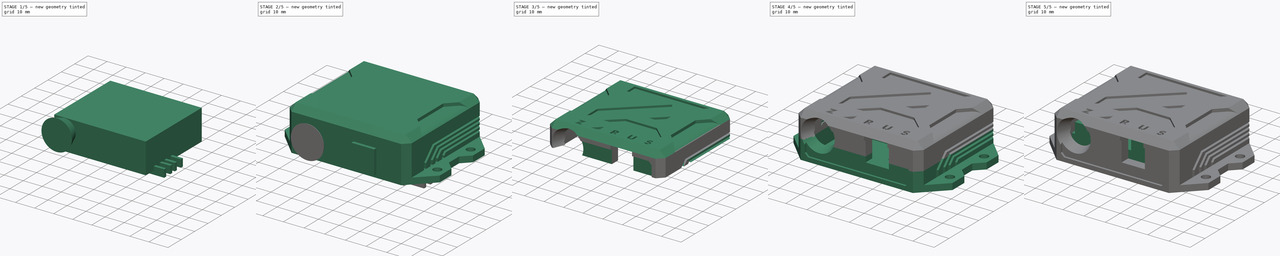
[diagram: build sequence overview — one tinted view per stage of 5, left to right]
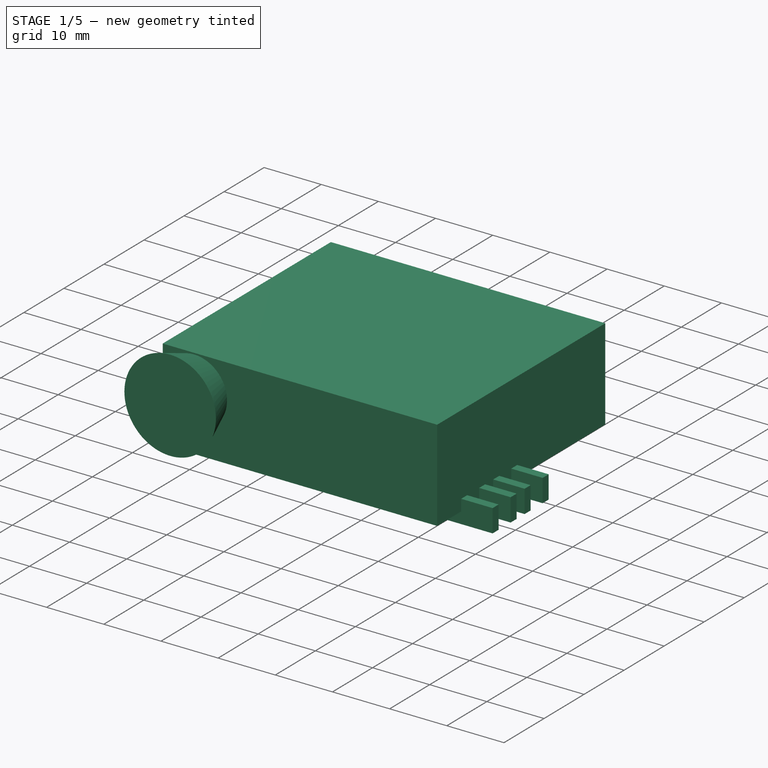
[diagram: stage 1 of 5 — iso view after this stage's code; geometry added in this stage tinted green]
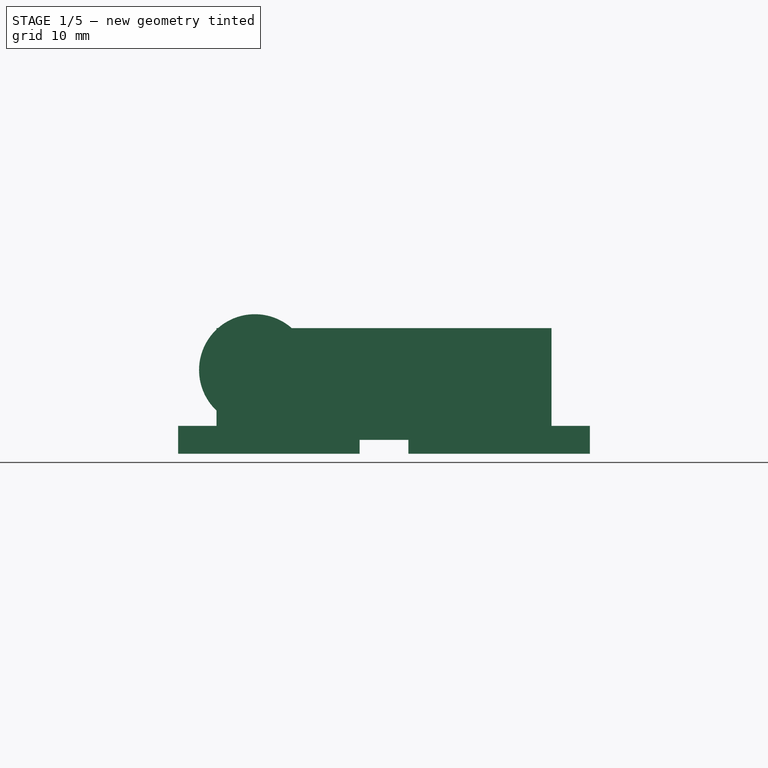
[diagram: stage 1 of 5 — front view after this stage's code; geometry added in this stage tinted green]
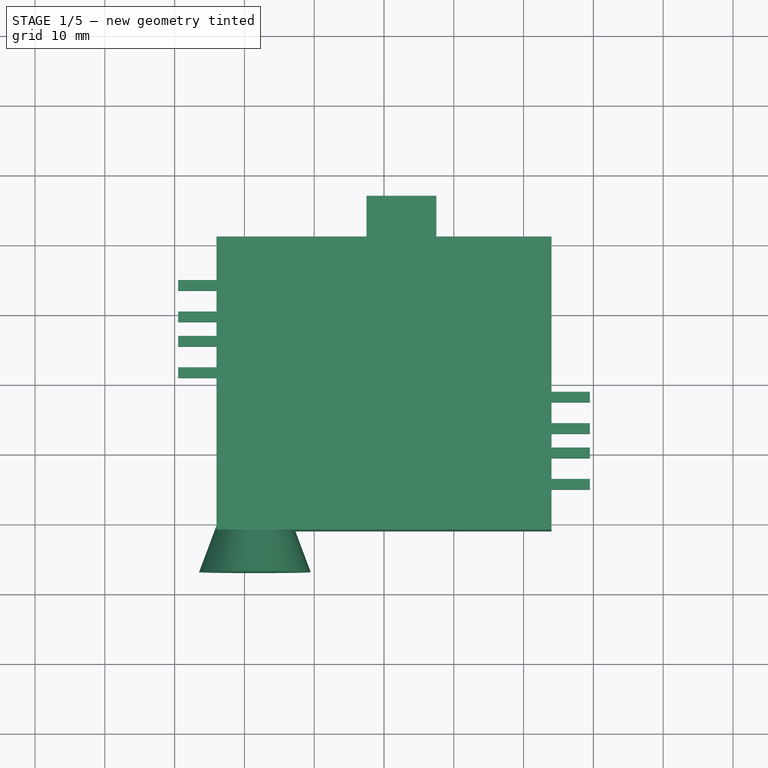
[diagram: stage 1 of 5 — top view after this stage's code; geometry added in this stage tinted green]
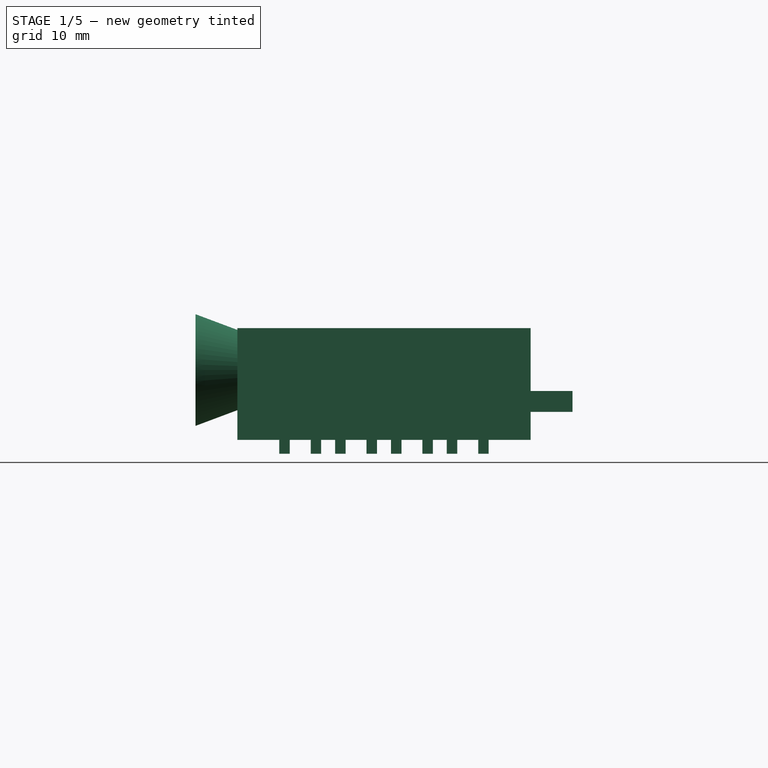
[diagram: stage 1 of 5 — right view after this stage's code; geometry added in this stage tinted green]
FCSTD DOCUMENT  (FreeCAD 0.18.4R)
Label: case
License: All rights reserved
LicenseURL: http://en.wikipedia.org/wiki/All_rights_reserved
objects: Part::Box×32, Part::MultiFuse×13, Sketcher::SketchObject×11, PartDesign::Body×8, Part::Feature×8, PartDesign::Pad×7, Part::Cut×6, PartDesign::FeatureBase×6, PartDesign::Pocket×4, PartDesign::Chamfer×3, Part::Chamfer×2, Part::Fillet×1, Spreadsheet::Sheet×1, Part::Cylinder×1, Part::Cone×1, PartDesign::Fillet×1, Part::MultiCommon×1
note: 116 computed .brp shape members not serialized (recipe doc carries the construction recipe); baked Part::Feature solids carry a one-line shape summary decoded from their .brp

FEATURE [Part::Box] Box011  label="Cube011"
  AttacherType = Attacher::AttachEngine3D
  Height = 4
  Length = 26
  Placement = pos=(3.5,-7,-5) rot=(0,0,1;0rad)
  Width = 1.5
FEATURE [Part::Box] Box013  label="Cube013"
  AttacherType = Attacher::AttachEngine3D
  Height = 4
  Length = 26
  Placement = pos=(3.5,-15,-5) rot=(0,0,1;0rad)
  Width = 1.5
FEATURE [Part::Box] Box012  label="Cube012"
  AttacherType = Attacher::AttachEngine3D
  Height = 4
  Length = 26
  Placement = pos=(3.5,-2.5,-5) rot=(0,0,1;0rad)
  Width = 1.5
FEATURE [Part::Box] Box010  label="Cube010"
  AttacherType = Attacher::AttachEngine3D
  Height = 4
  Length = 26
  Placement = pos=(3.5,-10.5,-5) rot=(0,0,1;0rad)
  Width = 1.5
FEATURE [Part::Box] Box009  label="Cube009"
  AttacherType = Attacher::AttachEngine3D
  Height = 4
  Length = 26
  Placement = pos=(3.5,-15,-5) rot=(0,0,1;0rad)
  Width = 1.5
FEATURE [Part::MultiFuse] Fusion002
  Shapes = -> [Box009,Box010,Box012,Box011]
FEATURE [Part::Box] Box016  label="Cube016"
  AttacherType = Attacher::AttachEngine3D
  Height = 4
  Length = 26
  Placement = pos=(3.5,-7,-5) rot=(0,0,1;0rad)
  Width = 1.5
FEATURE [Part::Box] Box015  label="Cube015"
  AttacherType = Attacher::AttachEngine3D
  Height = 4
  Length = 26
  Placement = pos=(3.5,-2.5,-5) rot=(0,0,1;0rad)
  Width = 1.5
FEATURE [Part::Box] Box014  label="Cube014"
  AttacherType = Attacher::AttachEngine3D
  Height = 4
  Length = 26
  Placement = pos=(3.5,-10.5,-5) rot=(0,0,1;0rad)
  Width = 1.5
FEATURE [Part::MultiFuse] Fusion003
  Placement = pos=(-33,16,0) rot=(0,0,1;0rad)
  Shapes = -> [Box013,Box014,Box015,Box016]
FEATURE [Part::MultiFuse] Fusion004  label="Ventilaciones"
  Shapes = -> [Fusion002,Fusion003]
FEATURE [Part::Cylinder] Cylinder  label="IrHole"
  Angle = 360
  AttacherType = Attacher::AttachEngine3D
  Height = 8
  Placement = pos=(-18.5,-19,7) rot=(1,0,0;1.5708rad)
  Radius = 5
FEATURE [Part::Box] Box019  label="CableHole"
  AttacherType = Attacher::AttachEngine3D
  Height = 3
  Length = 10
  Placement = pos=(-2.5,19,1) rot=(0,0,1;0rad)
  Width = 8
FEATURE [Part::Box] Box020  label="PCB_space"
  AttacherType = Attacher::AttachEngine3D
  Height = 16
  Length = 48
  Placement = pos=(-24,-21,-3) rot=(0,0,1;0rad)
  Width = 42
FEATURE [Part::Cone] Cone  label="IrHoleExpand"
  Angle = 360
  AttacherType = Attacher::AttachEngine3D
  Height = 8
  Placement = pos=(-18.5,-19,7) rot=(1,0,0;1.5708rad)
  Radius1 = 5
  Radius2 = 8
FEATURE [PartDesign::FeatureBase] Clone010
  BaseFeature = -> Fusion004
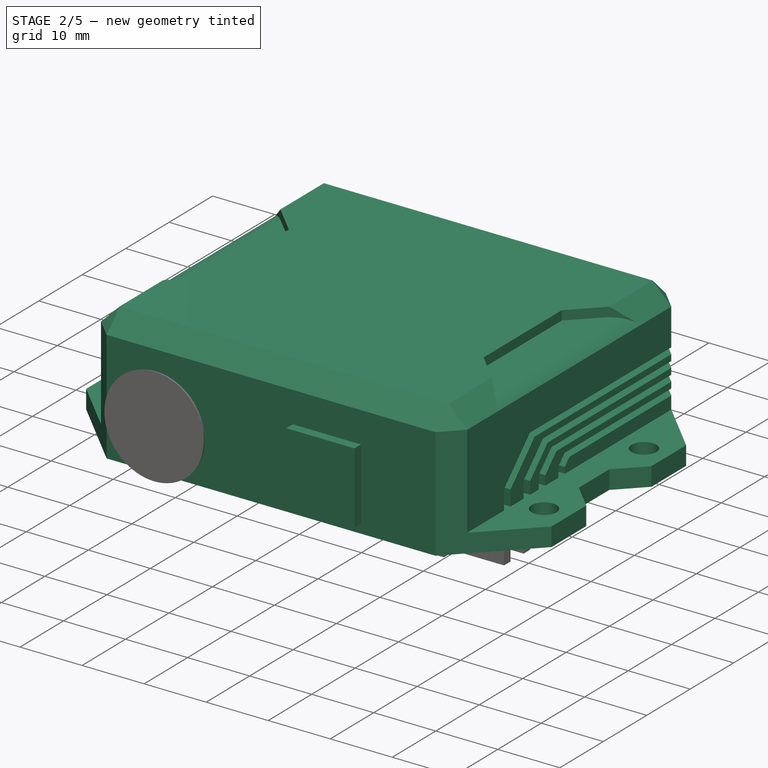
[diagram: stage 2 of 5 — iso view after this stage's code; geometry added in this stage tinted green]
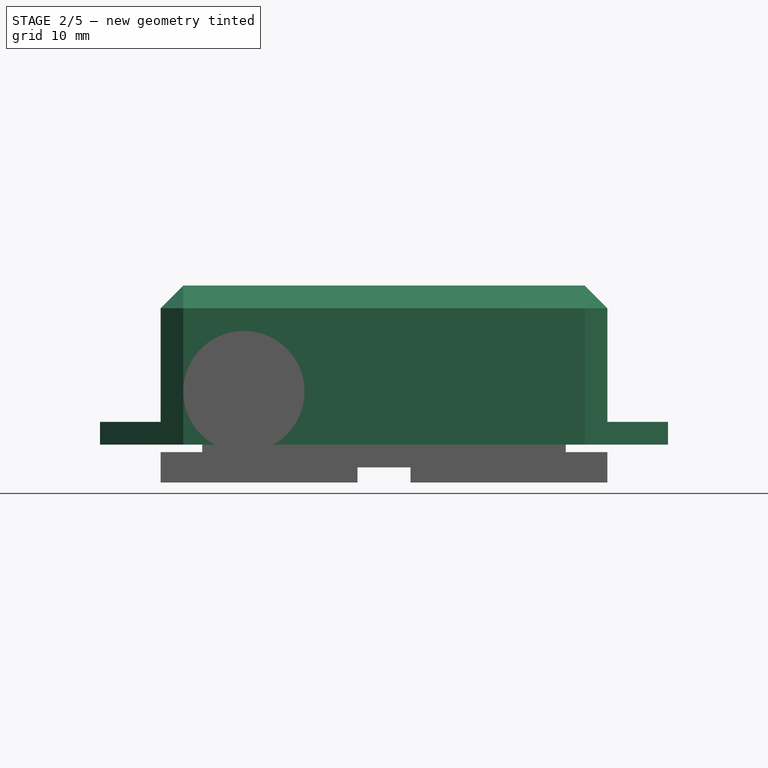
[diagram: stage 2 of 5 — front view after this stage's code; geometry added in this stage tinted green]
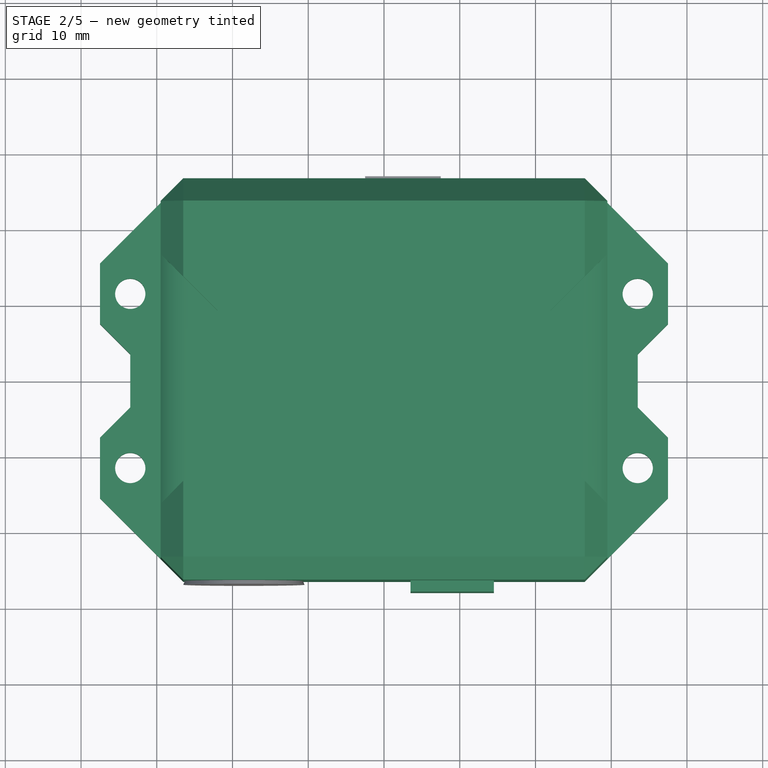
[diagram: stage 2 of 5 — top view after this stage's code; geometry added in this stage tinted green]
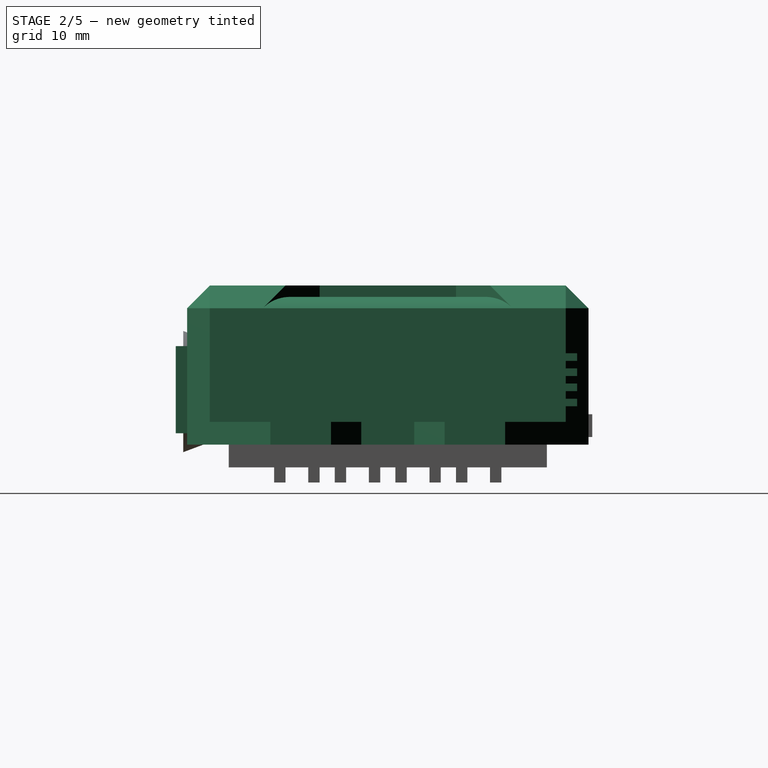
[diagram: stage 2 of 5 — right view after this stage's code; geometry added in this stage tinted green]
FEATURE [Part::Box] Box  label="Cube"
  AttacherType = Attacher::AttachEngine3D
  Height = 7
  Length = 8
  Placement = pos=(5,-5.5,7) rot=(0,0,1;0rad)
  Width = 10
FEATURE [Part::Chamfer] Chamfer
  Base = -> Box
  Edges = 1 edges r=6: [Edge11]
FEATURE [Part::Fillet] Fillet  label="stopper"
  Base = -> Chamfer
  Edges = 1 edges r=4: [Edge9]
FEATURE [Spreadsheet::Sheet] Spreadsheet
  cells = A2=Ancho de PBC; B2(ancho_pbc)=47; A3=Profundo PBC; B3(profundo_pbc)=41; A4=Grosor PBC; A5=Grosor Pared; B5(grosor_pared)=1.5; A6=Grosor Pared Externa; B6(grosor_pared_externa)=4; A7=margen; B7(margen)=0.5; A9=Altura Corte; B9(altura_corte)=9
FEATURE [Sketcher::SketchObject] Sketch014
  MapMode = 5
  Support = -> [XY_Plane009]
  expr: Constraints[9] = Spreadsheet.profundo_pbc + Spreadsheet.grosor_pared * 2 + Spreadsheet.margen * 2 + Spreadsheet.grosor_pared_externa * 2
  expr: Constraints[8] = Spreadsheet.ancho_pbc + Spreadsheet.grosor_pared * 2 + Spreadsheet.margen * 2 + Spreadsheet.grosor_pared_externa * 2
  sketch-geometry (4):
    g0: LineSegment StartX=-29.5 StartY=26.5 StartZ=0 EndX=29.5 EndY=26.5 EndZ=0
    g1: LineSegment StartX=29.5 StartY=26.5 StartZ=0 EndX=29.5 EndY=-26.5 EndZ=0
    g2: LineSegment StartX=29.5 StartY=-26.5 StartZ=0 EndX=-29.5 EndY=-26.5 EndZ=0
    g3: LineSegment StartX=-29.5 StartY=-26.5 StartZ=0 EndX=-29.5 EndY=26.5 EndZ=0
  constraints (10):
    c: Coincident(g0,g1)
    c: Coincident(g1,g2)
    c: Coincident(g2,g3)
    c: Coincident(g3,g0)
    c: Horizontal(g0)
    c: Vertical(g1)
    c: Symmetric(g1,g2,g-2)
    c: Symmetric(g2,g0,g-1)
    c: DistanceX(g0,g0) = 59
    c: DistanceY(g1,g1) = 53
FEATURE [PartDesign::Pad] Pad009
  Length = 21
  Length2 = 100
  Profile = -> Sketch014
  Type = 0
FEATURE [Sketcher::SketchObject] Sketch015
  ExternalGeometry = -> [Pad009]
  MapMode = 5
  Placement = pos=(0,0,0) rot=(1,0,0;3.14159rad)
  Support = -> [Pad009]
  expr: Constraints[36] = Spreadsheet.ancho_pbc + 8 + (Spreadsheet.margen + Spreadsheet.grosor_pared + Spreadsheet.grosor_pared_externa) * 2
  sketch-geometry (20):
    g0: Circle CenterX=-33.5 CenterY=11.5 CenterZ=0 NormalX=0 NormalY=0 NormalZ=1 AngleXU=0 Radius=2
    g1: Circle CenterX=-33.5 CenterY=-11.5 CenterZ=0 NormalX=0 NormalY=0 NormalZ=1 AngleXU=0 Radius=2
    g2: Circle CenterX=33.5 CenterY=-11.5 CenterZ=0 NormalX=0 NormalY=0 NormalZ=1 AngleXU=0 Radius=2
    g3: Circle CenterX=33.5 CenterY=11.5 CenterZ=0 NormalX=0 NormalY=0 NormalZ=1 AngleXU=0 Radius=2
    g4: LineSegment StartX=-37.5 StartY=-15.5 StartZ=0 EndX=-37.5 EndY=-7.5 EndZ=0
    g5: LineSegment StartX=-37.5 StartY=-7.5 StartZ=0 EndX=-33.5 EndY=-3.5 EndZ=0
    g6: LineSegment StartX=-33.5 StartY=-3.5 StartZ=0 EndX=-33.5 EndY=3.5 EndZ=0
    g7: LineSegment StartX=-33.5 StartY=3.5 StartZ=0 EndX=-37.5 EndY=7.5 EndZ=0
    g8: LineSegment StartX=-37.5 StartY=7.5 StartZ=0 EndX=-37.5 EndY=15.5 EndZ=0
    g9: LineSegment StartX=29.5 StartY=-23.5 StartZ=0 EndX=37.5 EndY=-15.5 EndZ=0
    g10: LineSegment StartX=37.5 StartY=-15.5 StartZ=0 EndX=37.5 EndY=-7.5 EndZ=0
    g11: LineSegment StartX=37.5 StartY=-7.5 StartZ=0 EndX=33.5 EndY=-3.5 EndZ=0
    g12: LineSegment StartX=33.5 StartY=-3.5 StartZ=0 EndX=33.5 EndY=3.5 EndZ=0
    g13: LineSegment StartX=33.5 StartY=3.5 StartZ=0 EndX=37.5 EndY=7.5 EndZ=0
    g14: LineSegment StartX=37.5 StartY=7.5 StartZ=0 EndX=37.5 EndY=15.5 EndZ=0
    g15: LineSegment StartX=37.5 StartY=15.5 StartZ=0 EndX=29.5 EndY=23.5 EndZ=0
    g16: LineSegment StartX=-29.5 StartY=-23.5 StartZ=0 EndX=-37.5 EndY=-15.5 EndZ=0
    g17: LineSegment StartX=-29.5 StartY=23.5 StartZ=0 EndX=-37.5 EndY=15.5 EndZ=0
    g18: LineSegment StartX=-29.5 StartY=23.5 StartZ=0 EndX=29.5 EndY=23.5 EndZ=0
    g19: LineSegment StartX=-29.5 StartY=-23.5 StartZ=0 EndX=29.5 EndY=-23.5 EndZ=0
  constraints (58):
    c: Radius(g0) = 2
    c: Equal(g0,g1) = 2
    c: Horizontal(g1,g2)
    c: Vertical(g1,g0)
    c: Coincident(g4,g5)
    c: Coincident(g5,g6)
    c: Coincident(g6,g7)
    c: Coincident(g7,g8)
    c: Coincident(g9,g10)
    c: Coincident(g10,g11)
    c: Coincident(g11,g12)
    c: Coincident(g12,g13)
    c: Coincident(g13,g14)
    c: Coincident(g14,g15)
    c: Vertical(g14)
    c: Vertical(g12)
    c: Vertical(g10)
    c: Vertical(g4)
    c: Vertical(g6)
    c: Vertical(g8)
    c: Coincident(g17,g8)
    c: Coincident(g16,g4)
    c: Equal(g4,g8)
    c: Equal(g8,g14)
    c: Equal(g14,g10)
    c: Equal(g12,g6)
    c: Equal(g7,g5)
    c: Equal(g5,g11)
    c: Equal(g11,g13)
    c: DistanceY(g17,g-3) = 3
    c: PointOnObject(g17,g-3)
    c: DistanceY(g15,g-4) = 3
    c: PointOnObject(g15,g-4)
    c: PointOnObject(g9,g-4)
    c: DistanceY(g-3,g16) = 3
    c: PointOnObject(g16,g-3)
    c: DistanceX(g0,g3) = 67
    c: Symmetric(g0,g3,g-2)
    c: Symmetric(g3,g2,g-1)
    c: Coincident(g9,g19)
    c: Coincident(g19,g16)
    c: Coincident(g18,g15)
    c: Coincident(g18,g17)
    c: Horizontal(g19)
    c: Angle(g14,g13) = 2.35619
    c: Parallel(g13,g5)
    c: Parallel(g7,g11)
    c: Perpendicular(g13,g11)
    c: DistanceY(g8,g8) = 8
    c: DistanceX(g8,g17) = 8
    c: Vertical(g0,g6)
    c: Equal(g15,g17)
    c: Equal(g17,g16)
    c: Equal(g16,g9)
    c: Parallel(g15,g11)
    c: DistanceY(g13,g3) = 4
    c: Equal(g3,g2)
    c: Equal(g2,g1)
FEATURE [PartDesign::Pad] Pad010
  BaseFeature = -> Pad009
  Length = 3
  Length2 = 100
  Profile = -> Sketch015
  Reversed = true
  Type = 0
FEATURE [PartDesign::Body] Body012
  BaseFeature = -> Fusion012
  Group = -> [Clone008]
  Origin = -> Origin012
  Placement = pos=(0,0,0.5) rot=(0,0,1;0rad)
  Tip = -> Clone008
FEATURE [Part::Box] Box018  label="PowerHole"
  AttacherType = Attacher::AttachEngine3D
  Height = 11.5
  Length = 11
  Placement = pos=(3.5,-28,1.5) rot=(0,0,1;0rad)
  Width = 8
FEATURE [Part::MultiFuse] Fusion017
  Shapes = -> [Box020,Box018,Cylinder,Box019,Cone]
FEATURE [Part::Cut] Cut003  label="InternalSpace"
  Base = -> Fusion017
  Tool = -> Fillet
FEATURE [PartDesign::Chamfer] Chamfer005
  Base = -> Pad010 [Edge17,Edge11,Edge10,Edge20,Edge18,Edge2,Edge4,Edge1]
  BaseFeature = -> Pad010
  Size = 2.999
FEATURE [Sketcher::SketchObject] Sketch016
  ExternalGeometry = -> [Pad010]
  MapMode = 5
  Placement = pos=(0,0,21) rot=(0,0,1;0rad)
  Support = -> [Pad010]
  sketch-geometry (12):
    g0: LineSegment StartX=29.5 StartY=16.5 StartZ=0 EndX=22 EndY=9 EndZ=0
    g1: LineSegment StartX=22 StartY=9 StartZ=0 EndX=22 EndY=-9 EndZ=0
    g2: LineSegment StartX=22 StartY=-9 StartZ=0 EndX=29.5 EndY=-16.5 EndZ=0
    g3: LineSegment StartX=-29.5 StartY=16.5 StartZ=0 EndX=-22 EndY=9 EndZ=0
    g4: LineSegment StartX=-22 StartY=9 StartZ=0 EndX=-22 EndY=-9 EndZ=0
    g5: LineSegment StartX=-22 StartY=-9 StartZ=0 EndX=-29.5 EndY=-16.5 EndZ=0
    g6: LineSegment StartX=-29.5 StartY=16.5 StartZ=0 EndX=-41 EndY=28 EndZ=0
    g7: LineSegment StartX=41 StartY=28 StartZ=0 EndX=29.5 EndY=16.5 EndZ=0
    g8: LineSegment StartX=-29.5 StartY=-16.5 StartZ=0 EndX=-41 EndY=-28 EndZ=0
    g9: LineSegment StartX=41 StartY=-28 StartZ=0 EndX=29.5 EndY=-16.5 EndZ=0
    g10: LineSegment StartX=-41 StartY=28 StartZ=0 EndX=-41 EndY=-28 EndZ=0
    g11: LineSegment StartX=41 StartY=28 StartZ=0 EndX=41 EndY=-28 EndZ=0
  constraints (36):
    c: Coincident(g0,g1)
    c: Coincident(g1,g2)
    c: Coincident(g3,g4)
    c: Coincident(g4,g5)
    c: Equal(g5,g2)
    c: Equal(g2,g0)
    c: Equal(g0,g3)
    c: Equal(g1,g4)
    c: Vertical(g4)
    c: Vertical(g1)
    c: Angle(g1,g0) = 2.35619
    c: PointOnObject(g0,g-3)
    c: PointOnObject(g3,g-4)
    c: Parallel(g3,g2)
    c: Parallel(g5,g0)
    c: Perpendicular(g2,g0)
    c: DistanceY(g0,g-3) = 10
    c: DistanceY(g-3,g2) = 10
    c: DistanceY(g1,g1) = 18
    c: Horizontal(g3,g0)
    c: Equal(g7,g6)
    c: Equal(g6,g8)
    c: Equal(g8,g9)
    c: Vertical(g7,g9)
    c: Parallel(g8,g7)
    c: Coincident(g9,g2)
    c: Coincident(g8,g5)
    c: Coincident(g3,g6)
    c: Parallel(g8,g5)
    c: DistanceX(g8,g9) = 82
    c: Equal(g11,g10)
    c: Coincident(g11,g7)
    c: Coincident(g11,g9)
    c: Coincident(g10,g8)
    c: Coincident(g10,g6)
    c: Coincident(g7,g0)
FEATURE [PartDesign::Pocket] Pocket
  BaseFeature = -> Chamfer005
  Length = 1.5
  Length2 = 100
  Profile = -> Sketch016
  Type = 0
FEATURE [PartDesign::Fillet] Fillet001
  Base = -> Pocket [Edge54,Edge86]
  BaseFeature = -> Pocket
  Radius = 5
FEATURE [Sketcher::SketchObject] Sketch017
  ExternalGeometry = -> [Fillet001]
  MapMode = 5
  Placement = pos=(29.5,0,0) rot=(0.57735,0.57735,0.57735;2.0944rad)
  Support = -> [Fillet001]
  sketch-geometry (39):
    g0: LineSegment StartX=-2.5 StartY=3 StartZ=0 EndX=-1 EndY=3 EndZ=0
    g1: LineSegment StartX=-5.5 StartY=3 StartZ=0 EndX=-7 EndY=3 EndZ=0
    g2: LineSegment StartX=-10.5 StartY=3 StartZ=0 EndX=-9 EndY=3 EndZ=0
    g3: LineSegment StartX=-13.5 StartY=3 StartZ=0 EndX=-15 EndY=3 EndZ=0
    g4: LineSegment StartX=-2.5 StartY=3 StartZ=0 EndX=-2.5 EndY=4.62132 EndZ=0
    g5: LineSegment StartX=-2.5 StartY=4.62132 StartZ=0 EndX=-1.06066 EndY=6.06066 EndZ=0
    g6: LineSegment StartX=-1.06066 StartY=6.06066 StartZ=0 EndX=25.001 EndY=6.06066 EndZ=0
    g7: LineSegment StartX=25.001 StartY=6.06066 StartZ=0 EndX=25.001 EndY=5.06066 EndZ=0
    g8: LineSegment StartX=25.001 StartY=5.06066 StartZ=0 EndX=0.0606602 EndY=5.06066 EndZ=0
    g9: LineSegment StartX=0.0606602 StartY=5.06066 StartZ=0 EndX=-1 EndY=4 EndZ=0
    g10: LineSegment StartX=-1 StartY=4 StartZ=0 EndX=-1 EndY=3 EndZ=0
    g11: LineSegment StartX=-7 StartY=3 StartZ=0 EndX=-7 EndY=5.12132 EndZ=0
    g12: LineSegment StartX=-7 StartY=5.12132 StartZ=0 EndX=-4.06066 EndY=8.06066 EndZ=0
    g13: LineSegment StartX=-4.06066 StartY=8.06066 StartZ=0 EndX=25.001 EndY=8.06066 EndZ=0
    g14: LineSegment StartX=25.001 StartY=8.06066 StartZ=0 EndX=25.001 EndY=7.06066 EndZ=0
    g15: LineSegment StartX=25.001 StartY=7.06066 StartZ=0 EndX=-2.93934 EndY=7.06066 EndZ=0
    g16: LineSegment StartX=-2.93934 StartY=7.06066 StartZ=0 EndX=-5.5 EndY=4.5 EndZ=0
    g17: LineSegment StartX=-5.5 StartY=4.5 StartZ=0 EndX=-5.5 EndY=3 EndZ=0
    g18: LineSegment StartX=-10.5 StartY=3 StartZ=0 EndX=-10.5 EndY=5.62132 EndZ=0
    g19: LineSegment StartX=-10.5 StartY=5.62132 StartZ=0 EndX=-6.06066 EndY=10.0607 EndZ=0
    g20: LineSegment StartX=-6.06066 StartY=10.0607 StartZ=0 EndX=25.001 EndY=10.0607 EndZ=0
    g21: LineSegment StartX=25.001 StartY=10.0607 StartZ=0 EndX=25.001 EndY=9.06066 EndZ=0
    g22: LineSegment StartX=25.001 StartY=9.06066 StartZ=0 EndX=-4.93934 EndY=9.06066 EndZ=0
    g23: LineSegment StartX=-4.93934 StartY=9.06066 StartZ=0 EndX=-9 EndY=5 EndZ=0
    g24: LineSegment StartX=-9 StartY=5 StartZ=0 EndX=-9 EndY=3 EndZ=0
    g25: LineSegment StartX=-15 StartY=3 StartZ=0 EndX=-15 EndY=6.12132 EndZ=0
    g26: LineSegment StartX=-15 StartY=6.12132 StartZ=0 EndX=-9.06066 EndY=12.0607 EndZ=0
    g27: LineSegment StartX=-9.06066 StartY=12.0607 StartZ=0 EndX=25.001 EndY=12.0607 EndZ=0
    g28: LineSegment StartX=25.001 StartY=12.0607 StartZ=0 EndX=25.001 EndY=11.0607 EndZ=0
    g29: LineSegment StartX=25.001 StartY=11.0607 StartZ=0 EndX=-7.93934 EndY=11.0607 EndZ=0
    g30: LineSegment StartX=-7.93934 StartY=11.0607 StartZ=0 EndX=-13.5 EndY=5.5 EndZ=0
    g31: LineSegment StartX=-13.5 StartY=5.5 StartZ=0 EndX=-13.5 EndY=3 EndZ=0
    g32: LineSegment [constr] StartX=25.001 StartY=11.0607 StartZ=0 EndX=25.001 EndY=10.0607 EndZ=0
    g33: LineSegment [constr] StartX=25.001 StartY=9.06066 StartZ=0 EndX=25.001 EndY=8.06066 EndZ=0
    g34: LineSegment [constr] StartX=25.001 StartY=7.06066 StartZ=0 EndX=25.001 EndY=6.06066 EndZ=0
    g35: LineSegment [constr] StartX=-1.06066 StartY=6.06066 StartZ=0 EndX=3.27398e-11 EndY=5 EndZ=0
    g36: LineSegment [constr] StartX=-4.06066 StartY=8.06066 StartZ=0 EndX=-3 EndY=7 EndZ=0
    g37: LineSegment [constr] StartX=-6.06066 StartY=10.0607 StartZ=0 EndX=-5 EndY=9 EndZ=0
    g38: LineSegment [constr] StartX=-9.06066 StartY=12.0607 StartZ=0 EndX=-8 EndY=11 EndZ=0
  constraints (116):
    c: DistanceX(g0,g0) = 1.5
    c: Equal(g3,g2)
    c: Equal(g2,g1)
    c: Equal(g1,g0)
    c: Horizontal(g0)
    c: Horizontal(g1)
    c: Horizontal(g2)
    c: Horizontal(g3)
    c: DistanceX(g3,g2) = 3
    c: DistanceX(g2,g1) = 2
    c: DistanceX(g1,g0) = 3
    c: Coincident(g4,g5)
    c: Coincident(g5,g6)
    c: Coincident(g6,g7)
    c: Coincident(g7,g8)
    c: Coincident(g8,g9)
    c: Coincident(g9,g10)
    c: Horizontal(g8)
    c: Horizontal(g6)
    c: Vertical(g7)
    c: Parallel(g9,g5)
    c: Vertical(g10)
    c: Vertical(g4)
    c: Coincident(g10,g0)
    c: Coincident(g0,g4)
    c: DistanceX(g-3,g3) = 8.5
    c: Angle(g10,g9) = 2.35619
    c: Coincident(g11,g12)
    c: Coincident(g12,g13)
    c: Coincident(g13,g14)
    c: Coincident(g14,g15)
    c: Coincident(g15,g16)
    c: Coincident(g16,g17)
    c: Horizontal(g15)
    c: Horizontal(g13)
    c: Vertical(g14)
    c: Parallel(g16,g12)
    c: Vertical(g17)
    c: Vertical(g11)
    c: Angle(g17,g16) = 2.35619
    c: Coincident(g17,g1)
    c: Coincident(g11,g1)
    c: Coincident(g18,g19)
    c: Coincident(g19,g20)
    c: Coincident(g20,g21)
    c: Coincident(g21,g22)
    c: Coincident(g22,g23)
    c: Coincident(g23,g24)
    c: Horizontal(g22)
    c: Horizontal(g20)
    c: Vertical(g21)
    c: Parallel(g23,g19)
    c: Vertical(g24)
    c: Vertical(g18)
    c: Angle(g24,g23) = 2.35619
    c: Coincident(g25,g26)
    c: Coincident(g26,g27)
    c: Coincident(g27,g28)
    c: Coincident(g28,g29)
    c: Coincident(g29,g30)
    c: Coincident(g30,g31)
    c: Horizontal(g29)
    c: Horizontal(g27)
    c: Vertical(g28)
    c: Parallel(g30,g26)
    c: Vertical(g31)
    c: Vertical(g25)
    c: Angle(g31,g30) = 2.35619
    c: Coincident(g24,g2)
    c: Coincident(g18,g2)
    c: Coincident(g31,g3)
    c: Coincident(g25,g3)
    c: Horizontal(g3,g2)
    c: Horizontal(g2,g1)
    c: Horizontal(g1,g0)
    c: Vertical(g6,g14)
    c: Vertical(g14,g21)
    c: Vertical(g21,g28)
    c: Equal(g28,g21)
    c: Equal(g21,g14)
    c: Equal(g14,g7)
    c: Equal(g32,g33)
    c: Equal(g33,g34)
    c: Coincident(g32,g28)
    c: Coincident(g32,g20)
    c: Coincident(g33,g13)
    c: Coincident(g33,g21)
    c: Coincident(g34,g6)
    c: Coincident(g34,g14)
    c: Equal(g32,g33)
    c: Equal(g33,g34)
    c: DistanceY(g7,g7) = 1
    c: Equal(g38,g37)
    c: Equal(g37,g36)
    c: Equal(g36,g35)
    c: Perpendicular(g5,g35)
    c: Perpendicular(g12,g36)
    c: Perpendicular(g19,g37)
    c: Perpendicular(g26,g38)
    c: Coincident(g38,g26)
    c: Coincident(g35,g5)
    c: Coincident(g36,g12)
    c: Coincident(g37,g19)
    c: PointOnObject(g35,g9)
    c: PointOnObject(g36,g16)
    c: PointOnObject(g37,g23)
    c: PointOnObject(g38,g30)
    c: Distance(g35) = 1.5
    c: DistanceY(g34,g34) = 1
    c: DistanceY(g10,g10) = 1
    c: DistanceY(g17,g17) = 1.5
    c: DistanceY(g24,g24) = 2
    c: DistanceY(g31,g31) = 2.5
    c: Distance(g9) = 1.5
    c: DistanceX(g-4,g7) = 1.5
    c: Horizontal(g3,g-3)
FEATURE [PartDesign::Pocket] Pocket001
  BaseFeature = -> Fillet001
  Length = 1.5
  Length2 = 100
  Profile = -> Sketch017
  Type = 0
FEATURE [Sketcher::SketchObject] Sketch018
  ExternalGeometry = -> [Pocket001]
  MapMode = 5
  Placement = pos=(0,26.5,0) rot=(0,0.707107,0.707107;3.14159rad)
  Support = -> [Pocket001]
  sketch-geometry (4):
    g0: LineSegment StartX=-24.501 StartY=16.001 StartZ=0 EndX=24.501 EndY=16.001 EndZ=0
    g1: LineSegment StartX=24.501 StartY=16.001 StartZ=0 EndX=24.501 EndY=2 EndZ=0
    g2: LineSegment StartX=24.501 StartY=2 StartZ=0 EndX=-24.501 EndY=2 EndZ=0
    g3: LineSegment StartX=-24.501 StartY=2 StartZ=0 EndX=-24.501 EndY=16.001 EndZ=0
  constraints (11):
    c: Coincident(g0,g1)
    c: Coincident(g1,g2)
    c: Coincident(g2,g3)
    c: Coincident(g3,g0)
    c: Horizontal(g2)
    c: Vertical(g1)
    c: Vertical(g3)
    c: DistanceX(g0,g-3) = 2
    c: Symmetric(g0,g0,g-2)
    c: DistanceY(g-4,g1) = 2
    c: DistanceY(g0,g-3) = 2
FEATURE [PartDesign::Pocket] Pocket002
  BaseFeature = -> Pocket001
  Length = 1
  Length2 = 100
  Profile = -> Sketch018
  Type = 0
FEATURE [PartDesign::Chamfer] Chamfer006
  Base = -> Pocket002 [Edge161,Edge165,Edge163,Edge160]
  BaseFeature = -> Pocket002
  Size = 1.5
FEATURE [PartDesign::Body] Body015
  BaseFeature = -> Fusion004
  Group = -> [Clone010]
  Origin = -> Origin015
  Tip = -> Clone010
FEATURE [Part::MultiFuse] Fusion018  label="Inner_space2"
  Shapes = -> [Cut003,Body015]
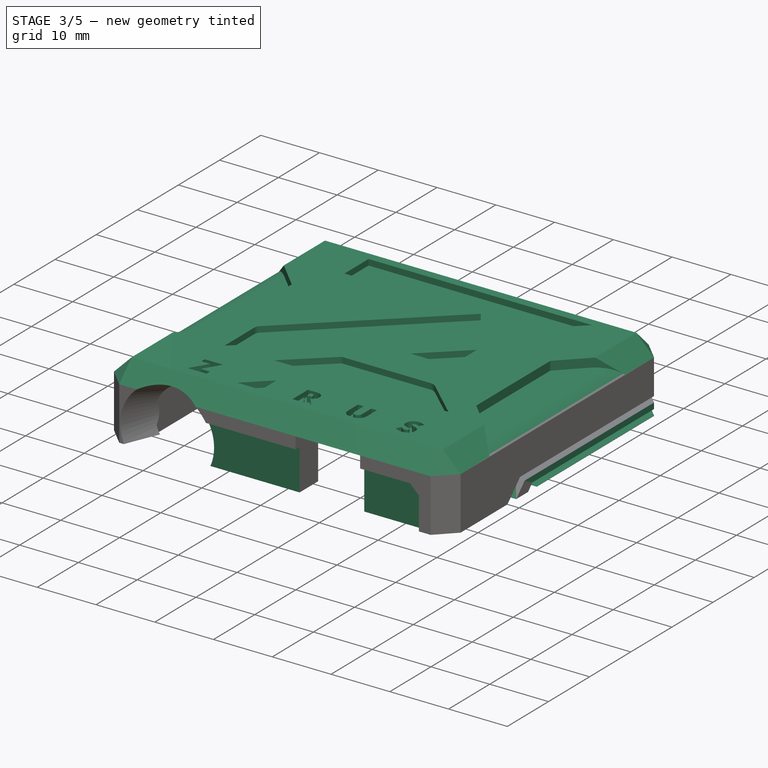
[diagram: stage 3 of 5 — iso view after this stage's code; geometry added in this stage tinted green]
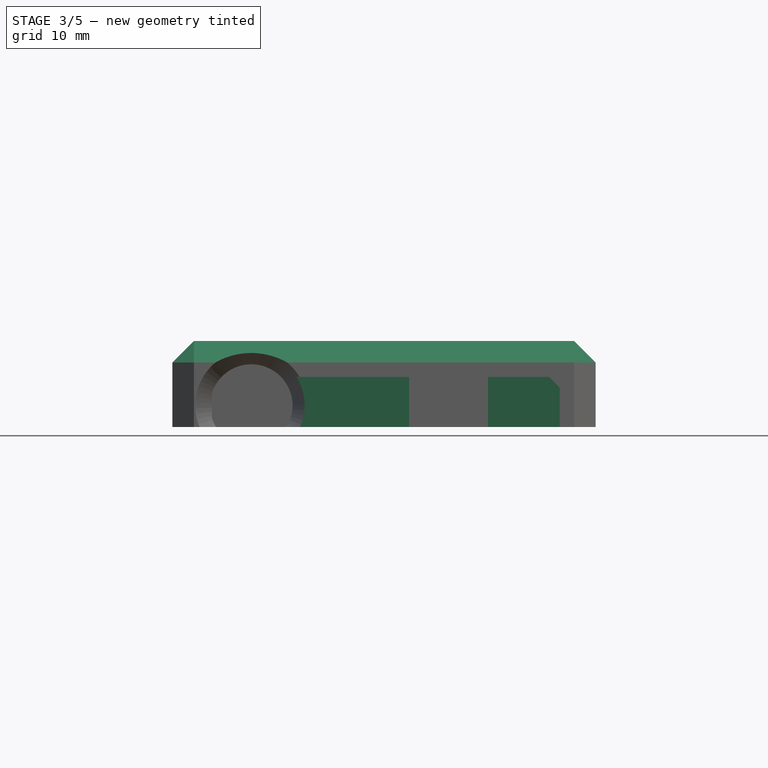
[diagram: stage 3 of 5 — front view after this stage's code; geometry added in this stage tinted green]
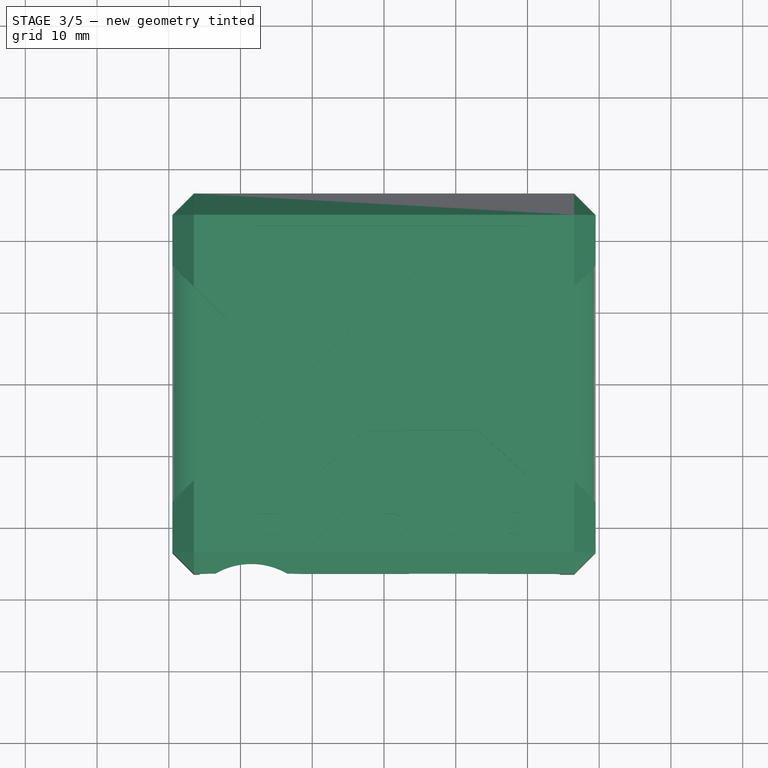
[diagram: stage 3 of 5 — top view after this stage's code; geometry added in this stage tinted green]
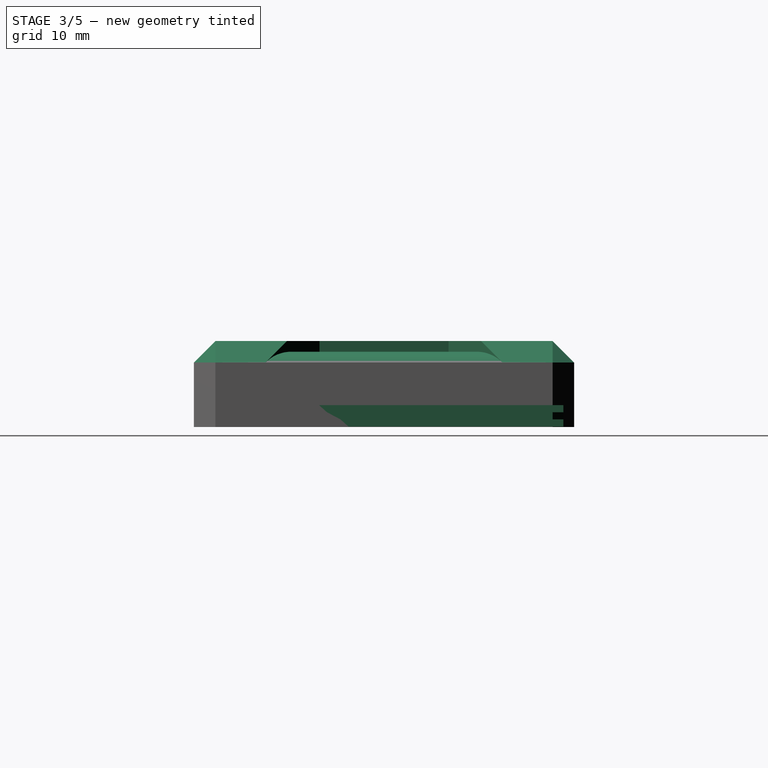
[diagram: stage 3 of 5 — right view after this stage's code; geometry added in this stage tinted green]
FEATURE [Part::Feature] Zarus_Logo001001001_solid  label="Zarus_Logo007007 (Solid)"
  shape: bbox 6.864 x 6.3 x 1.2 mm, 5 faces (baked)
FEATURE [Part::Feature] Zarus_Logo002001001_solid  label="Zarus_Logo007002 (Solid)"
  shape: bbox 29.56 x 6.352 x 1.2 mm, 14 faces (baked)
FEATURE [Part::Feature] Zarus_Logo008001_solid  label="Zarus_Logo007005 (Solid)"
  shape: bbox 38.1 x 34.93 x 1.2 mm, 14 faces (baked)
FEATURE [Part::MultiFuse] Fusion010  label="Logo"
  Placement = pos=(0,-1,0) rot=(0,0,1;0rad)
  Shapes = -> [Zarus_Logo002001001_solid,Zarus_Logo008001_solid,Zarus_Logo001001001_solid]
FEATURE [Part::Feature] Zarus_Logo003001001_solid  label="Zarus_Logo007009 (Solid)"
  shape: bbox 3.393 x 3.739 x 1.2 mm, 10 faces (baked)
FEATURE [Part::Feature] Zarus_Logo004001001_solid  label="Zarus_Logo007006 (Solid)"
  shape: bbox 4.072 x 3.739 x 1.2 mm, 5 faces (baked)
FEATURE [Part::Feature] Zarus_Logo005001001_solid  label="Zarus_Logo007004 (Solid)"
  shape: bbox 3.125 x 3.739 x 1.2 mm, 30 faces (baked)
FEATURE [Part::Feature] Zarus_Logo006001001_solid  label="Zarus_Logo007008 (Solid)"
  shape: bbox 3.227 x 3.829 x 1.2 mm, 33 faces (baked)
FEATURE [Part::Feature] Zarus_Logo007001001_solid  label="Zarus_Logo007003 (Solid)"
  shape: bbox 2.766 x 3.957 x 1.2 mm, 56 faces (baked)
FEATURE [Part::MultiFuse] Fusion011  label="Nombre"
  Placement = pos=(0,1,0) rot=(0,0,1;0rad)
  Shapes = -> [Zarus_Logo003001001_solid,Zarus_Logo007001001_solid,Zarus_Logo006001001_solid,Zarus_Logo004001001_solid,Zarus_Logo005001001_solid]
FEATURE [Part::MultiFuse] Fusion012  label="ORG_ZarusLogo"
  Shapes = -> [Fusion010,Fusion011]
FEATURE [PartDesign::FeatureBase] Clone008
  BaseFeature = -> Fusion012
FEATURE [Part::Box] Box022  label="ORG_LimiteCorte"
  AttacherType = Attacher::AttachEngine3D
  Height = 9
  Length = 78
  Placement = pos=(-39.5,-27,-5) rot=(0,0,1;0rad)
  Width = 55
  expr: Height = Spreadsheet.altura_corte
FEATURE [Part::Box] Box027  label="Cube025"
  AttacherType = Attacher::AttachEngine3D
  Height = 4
  Length = 2
  Placement = pos=(24,7.5,4) rot=(0,0,1;0rad)
  Width = 10
FEATURE [Part::Box] Box028  label="Cube026"
  AttacherType = Attacher::AttachEngine3D
  Height = 4
  Length = 10
  Placement = pos=(-10.5,-23,4) rot=(0,0,1;0rad)
  Width = 2
FEATURE [Part::Box] Box029  label="Cube027"
  AttacherType = Attacher::AttachEngine3D
  Height = 4
  Length = 10
  Placement = pos=(-15,21,4) rot=(0,0,1;0rad)
  Width = 2
FEATURE [Sketcher::SketchObject] Sketch019
  ExternalGeometry = -> [Chamfer006]
  MapMode = 5
  Placement = pos=(0,-26.5,0) rot=(1,0,0;1.5708rad)
  Support = -> [Chamfer006]
  sketch-geometry (4):
    g0: LineSegment StartX=-24.501 StartY=16.001 StartZ=0 EndX=24.501 EndY=16.001 EndZ=0
    g1: LineSegment StartX=24.501 StartY=16.001 StartZ=0 EndX=24.501 EndY=2 EndZ=0
    g2: LineSegment StartX=24.501 StartY=2 StartZ=0 EndX=-24.501 EndY=2 EndZ=0
    g3: LineSegment StartX=-24.501 StartY=2 StartZ=0 EndX=-24.501 EndY=16.001 EndZ=0
  constraints (11):
    c: Coincident(g0,g1)
    c: Coincident(g1,g2)
    c: Coincident(g2,g3)
    c: Coincident(g3,g0)
    c: Horizontal(g0)
    c: Vertical(g1)
    c: Vertical(g3)
    c: Symmetric(g1,g2,g-2)
    c: DistanceY(g-4,g1) = 2
    c: DistanceX(g0,g-3) = 2
    c: DistanceY(g0,g-3) = 2
FEATURE [PartDesign::Pocket] Pocket003
  BaseFeature = -> Chamfer006
  Length = 1
  Length2 = 100
  Profile = -> Sketch019
  Type = 0
FEATURE [PartDesign::Chamfer] Chamfer007
  Base = -> Pocket003 [Edge264,Edge263,Edge266,Edge268]
  BaseFeature = -> Pocket003
  Size = 1.5
FEATURE [PartDesign::Body] Body009  label="ORG_Form"
  Group = -> [Sketch014,Pad009,Sketch015,Pad010,Sketch016,Chamfer005,Pocket,Fillet001,Sketch017,Pocket001,Sketch018,Pocket002,Chamfer006,Sketch019,Pocket003,Chamfer007]
  Origin = -> Origin009
  Placement = pos=(0,0,-5) rot=(0,0,1;0rad)
  Tip = -> Chamfer007
FEATURE [PartDesign::FeatureBase] Clone007
  BaseFeature = -> Body009
  Placement = pos=(0,0,-5) rot=(0,0,1;0rad)
FEATURE [PartDesign::Body] Body011
  BaseFeature = -> Body009
  Group = -> [Clone007]
  Origin = -> Origin011
  Tip = -> Clone007
FEATURE [Part::Cut] Cut  label="Case_marked"
  Base = -> Body011
  Tool = -> Body012
FEATURE [Part::Cut] Cut004  label="Case_unfilled"
  Base = -> Cut
  Tool = -> Fusion018
FEATURE [PartDesign::Body] Body013  label="LimiteCorte1"
  Group = -> [Clone]
  Origin = -> Origin013
  Tip = -> Clone
FEATURE [PartDesign::FeatureBase] Clone009
  BaseFeature = -> Box022
  Placement = pos=(-39.5,-27,-5) rot=(0,0,1;0rad)
FEATURE [PartDesign::Body] Body014  label="LimiteCorte2"
  Group = -> [Clone009]
  Origin = -> Origin014
  Tip = -> Clone009
FEATURE [PartDesign::FeatureBase] Clone011
  BaseFeature = -> Cut004
FEATURE [Part::Cut] Cut005
  Base = -> Body016
  Tool = -> Body014
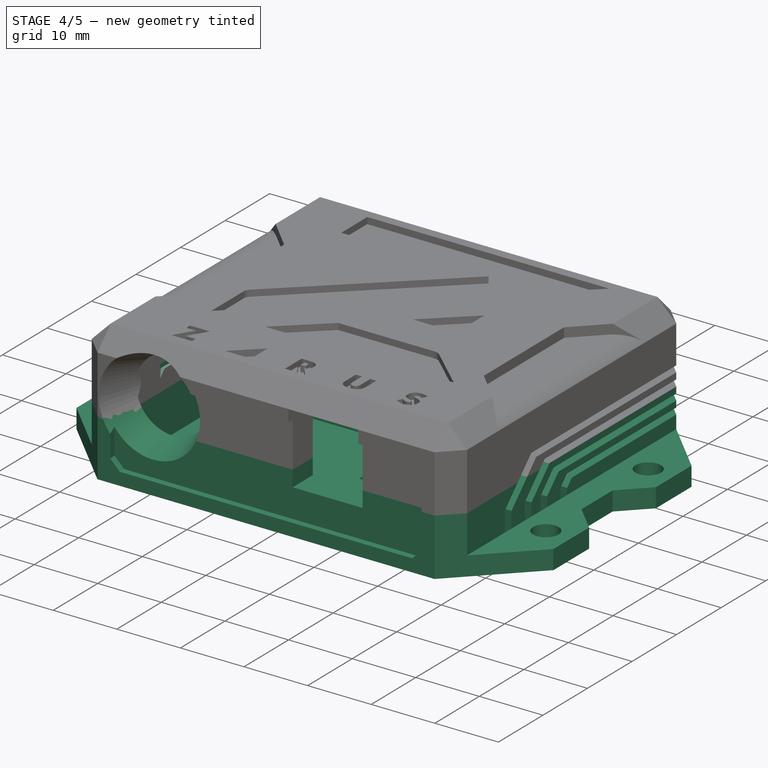
[diagram: stage 4 of 5 — iso view after this stage's code; geometry added in this stage tinted green]
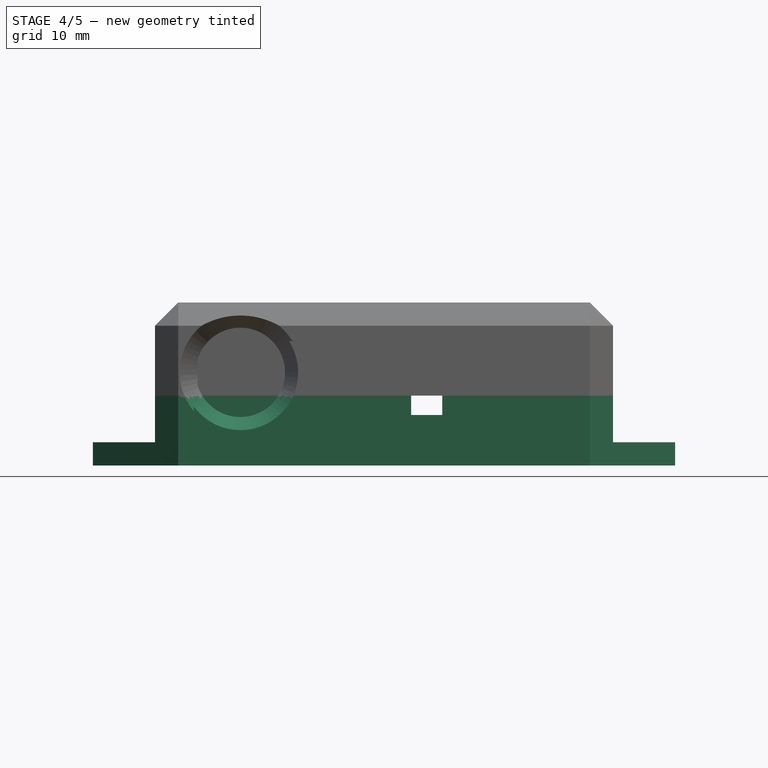
[diagram: stage 4 of 5 — front view after this stage's code; geometry added in this stage tinted green]
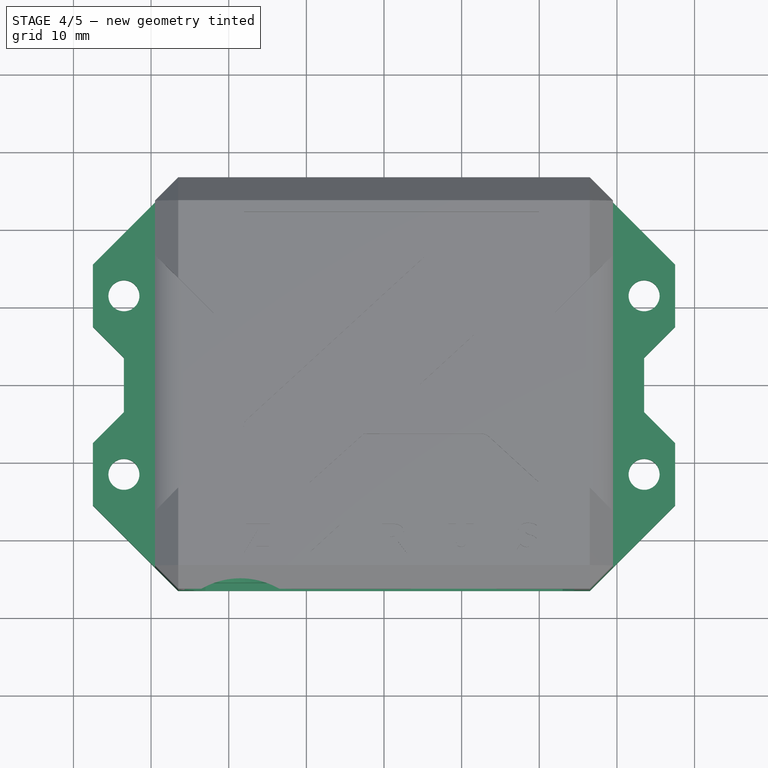
[diagram: stage 4 of 5 — top view after this stage's code; geometry added in this stage tinted green]
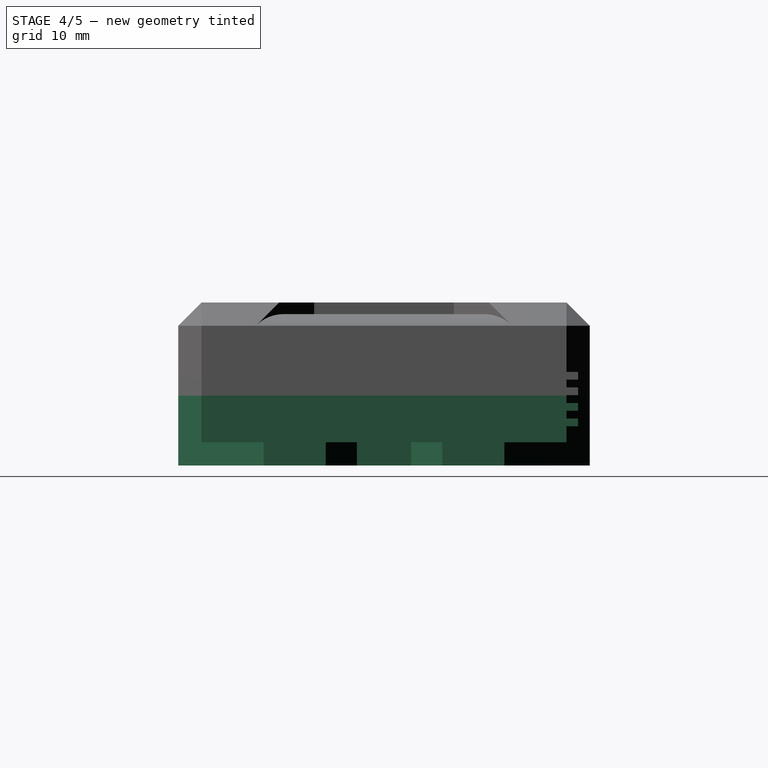
[diagram: stage 4 of 5 — right view after this stage's code; geometry added in this stage tinted green]
FEATURE [Part::Box] Box023  label="Cube021"
  AttacherType = Attacher::AttachEngine3D
  Height = 4
  Length = 2
  Placement = pos=(-26,7.5,4) rot=(0,0,1;0rad)
  Width = 10
FEATURE [Part::Box] Box025  label="Cube023"
  AttacherType = Attacher::AttachEngine3D
  Height = 4
  Length = 2
  Placement = pos=(-26,-16,4) rot=(0,0,1;0rad)
  Width = 10
FEATURE [Part::Box] Box026  label="Cube024"
  AttacherType = Attacher::AttachEngine3D
  Height = 4
  Length = 2
  Placement = pos=(24,-16,4) rot=(0,0,1;0rad)
  Width = 10
FEATURE [Part::MultiFuse] Fusion015  label="Join_Holes"
  Shapes = -> [Box029,Box026,Box025,Box028,Box023,Box027]
FEATURE [Part::Box] Box030  label="Cube028"
  AttacherType = Attacher::AttachEngine3D
  Height = 3
  Length = 1.5
  Placement = pos=(24,-16,4) rot=(0,0,1;0rad)
  Width = 10
FEATURE [Part::Box] Box031  label="Cube029"
  AttacherType = Attacher::AttachEngine3D
  Height = 3
  Length = 1.5
  Placement = pos=(-25.5,-16,4) rot=(0,0,1;0rad)
  Width = 10
FEATURE [Part::Box] Box032  label="Cube030"
  AttacherType = Attacher::AttachEngine3D
  Height = 3
  Length = 10
  Placement = pos=(-10.5,-22.5,4) rot=(0,0,1;0rad)
  Width = 1.5
FEATURE [Part::Box] Box033  label="Cube031"
  AttacherType = Attacher::AttachEngine3D
  Height = 3
  Length = 1.5
  Placement = pos=(-25.5,7.5,4) rot=(0,0,1;0rad)
  Width = 10
FEATURE [Part::Box] Box034  label="Cube032"
  AttacherType = Attacher::AttachEngine3D
  Height = 3
  Length = 10
  Placement = pos=(-15,21,4) rot=(0,0,1;0rad)
  Width = 1.5
FEATURE [Part::Box] Box035  label="Cube033"
  AttacherType = Attacher::AttachEngine3D
  Height = 3
  Length = 1.5
  Placement = pos=(24,7.5,4) rot=(0,0,1;0rad)
  Width = 10
FEATURE [Part::MultiFuse] Fusion016
  Shapes = -> [Box034,Box030,Box031,Box032,Box033,Box035]
FEATURE [Part::Chamfer] Chamfer004  label="Join_Pins"
  Base = -> Fusion016
  Edges = 18 edges r=1: [Edge2,Edge6,Edge12,Edge18,Edge22,Edge24,Edge26,Edge34,Edge36,Edge38,Edge42,Edge46,Edge50,Edge58,Edge60,Edge66,Edge70,Edge72]
FEATURE [PartDesign::FeatureBase] Clone
  BaseFeature = -> Box022
  Placement = pos=(-39.5,-27,-5) rot=(0,0,1;0rad)
FEATURE [PartDesign::Body] Body016  label="Case_unfilled2"
  BaseFeature = -> Cut004
  Group = -> [Clone011]
  Origin = -> Origin016
  Tip = -> Clone011
FEATURE [Part::MultiCommon] Common
  Shapes = -> [Cut004,Body013]
FEATURE [Part::Cut] Cut006  label="Top_case"
  Base = -> Cut005
  Tool = -> Fusion015
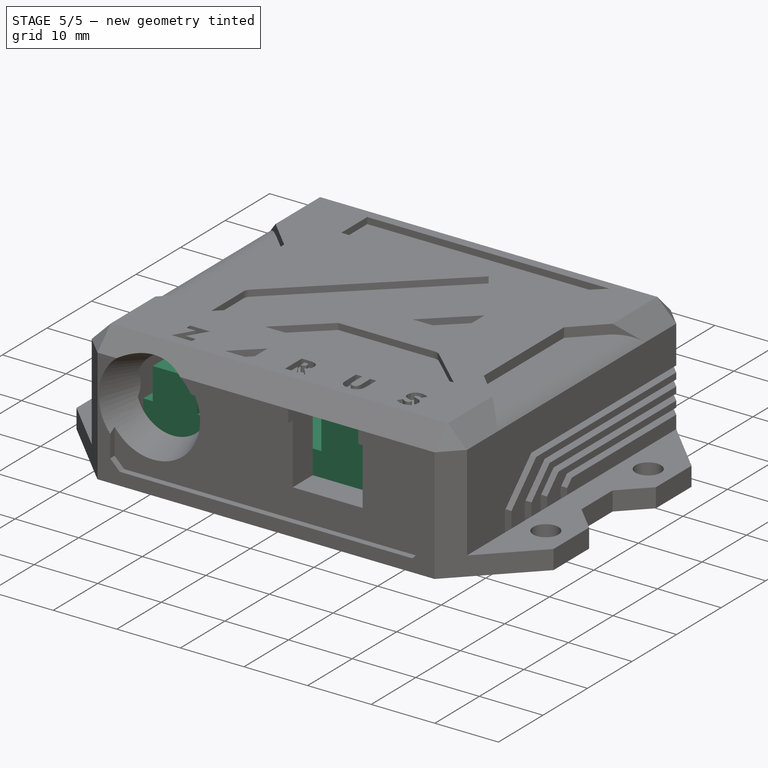
[diagram: stage 5 of 5 — iso view after this stage's code; geometry added in this stage tinted green]
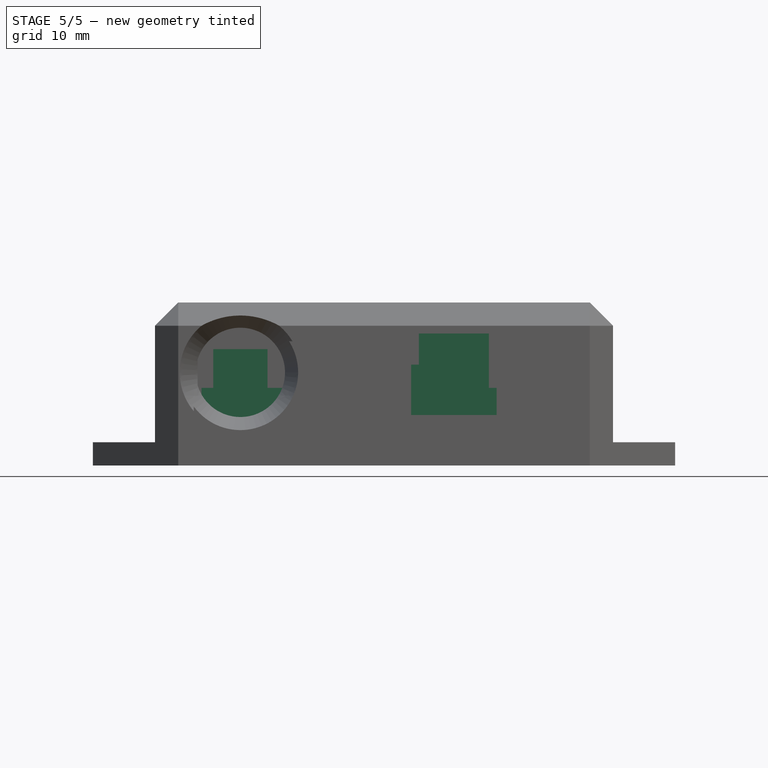
[diagram: stage 5 of 5 — front view after this stage's code; geometry added in this stage tinted green]
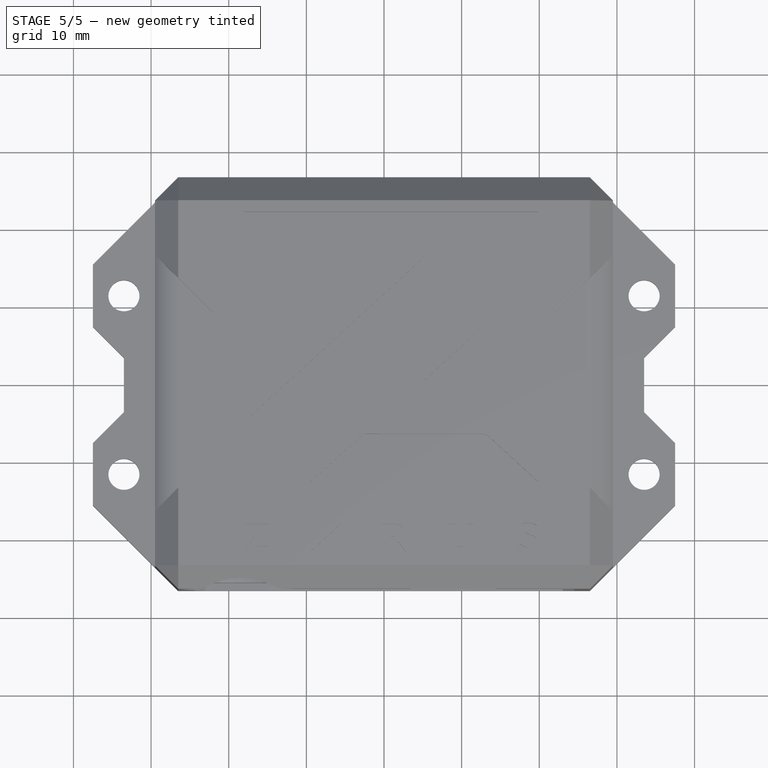
[diagram: stage 5 of 5 — top view after this stage's code; geometry added in this stage tinted green]
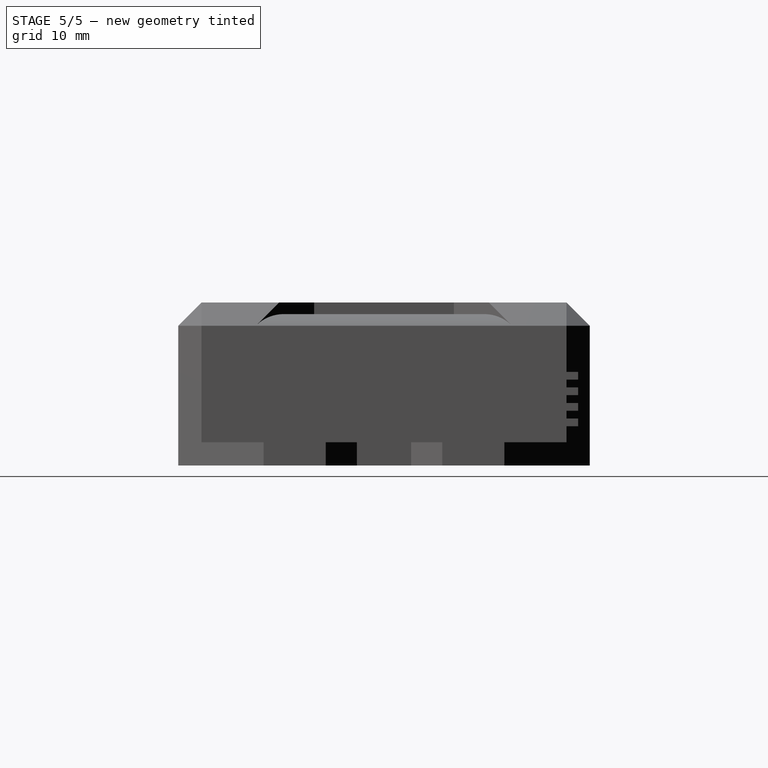
[diagram: stage 5 of 5 — right view after this stage's code; geometry added in this stage tinted green]
FEATURE [Sketcher::SketchObject] Sketch
  MapMode = 5
  Support = -> [XY_Plane]
  expr: Constraints[9] = Spreadsheet.profundo_pbc
  expr: Constraints[8] = Spreadsheet.ancho_pbc
  sketch-geometry (4):
    g0: LineSegment StartX=-23.5 StartY=20.5 StartZ=0 EndX=23.5 EndY=20.5 EndZ=0
    g1: LineSegment StartX=23.5 StartY=20.5 StartZ=0 EndX=23.5 EndY=-20.5 EndZ=0
    g2: LineSegment StartX=23.5 StartY=-20.5 StartZ=0 EndX=-23.5 EndY=-20.5 EndZ=0
    g3: LineSegment StartX=-23.5 StartY=-20.5 StartZ=0 EndX=-23.5 EndY=20.5 EndZ=0
  constraints (10):
    c: Coincident(g0,g1)
    c: Coincident(g1,g2)
    c: Coincident(g2,g3)
    c: Coincident(g3,g0)
    c: Horizontal(g2)
    c: Vertical(g1)
    c: Symmetric(g0,g0,g-2)
    c: Symmetric(g0,g2,g-1)
    c: DistanceX(g0,g0) = 47
    c: DistanceY(g3,g3) = 41
FEATURE [PartDesign::Pad] Pad
  Length = 1
  Length2 = 100
  Profile = -> Sketch
  Type = 0
FEATURE [Sketcher::SketchObject] Sketch001
  ExternalGeometry = -> [Pad]
  MapMode = 5
  Placement = pos=(0,0,1) rot=(0,0,1;0rad)
  Support = -> [Pad]
  sketch-geometry (4):
    g0: LineSegment StartX=4.5 StartY=-5.5 StartZ=0 EndX=13.5 EndY=-5.5 EndZ=0
    g1: LineSegment StartX=13.5 StartY=-5.5 StartZ=0 EndX=13.5 EndY=-20.5 EndZ=0
    g2: LineSegment StartX=13.5 StartY=-20.5 StartZ=0 EndX=4.5 EndY=-20.5 EndZ=0
    g3: LineSegment StartX=4.5 StartY=-20.5 StartZ=0 EndX=4.5 EndY=-5.5 EndZ=0
  constraints (12):
    c: Coincident(g0,g1)
    c: Coincident(g1,g2)
    c: Coincident(g2,g3)
    c: Coincident(g3,g0)
    c: Horizontal(g0)
    c: Horizontal(g2)
    c: Vertical(g1)
    c: Vertical(g3)
    c: DistanceY(g1,g1) = 15
    c: DistanceX(g2,g2) = 9
    c: DistanceX(g1,g-3) = 10
    c: PointOnObject(g1,g-4)
FEATURE [PartDesign::Pad] Pad001
  BaseFeature = -> Pad
  Length = 11
  Length2 = 100
  Profile = -> Sketch001
  Type = 0
FEATURE [Sketcher::SketchObject] Sketch002
  ExternalGeometry = -> [Pad001]
  MapMode = 5
  Placement = pos=(0,0,1) rot=(0,0,1;0rad)
  Support = -> [Pad001]
  sketch-geometry (4):
    g0: LineSegment StartX=-22 StartY=-14.5 StartZ=0 EndX=-15 EndY=-14.5 EndZ=0
    g1: LineSegment StartX=-15 StartY=-14.5 StartZ=0 EndX=-15 EndY=-20.5 EndZ=0
    g2: LineSegment StartX=-15 StartY=-20.5 StartZ=0 EndX=-22 EndY=-20.5 EndZ=0
    g3: LineSegment StartX=-22 StartY=-20.5 StartZ=0 EndX=-22 EndY=-14.5 EndZ=0
  constraints (12):
    c: Coincident(g0,g1)
    c: Coincident(g1,g2)
    c: Coincident(g2,g3)
    c: Coincident(g3,g0)
    c: Horizontal(g0)
    c: Horizontal(g2)
    c: Vertical(g1)
    c: Vertical(g3)
    c: DistanceY(g3,g3) = 6
    c: DistanceX(g0,g0) = 7
    c: DistanceX(g-3,g2) = 1.5
    c: PointOnObject(g2,g-4)
FEATURE [PartDesign::Pad] Pad002
  BaseFeature = -> Pad001
  Length = 9
  Length2 = 100
  Profile = -> Sketch002
  Type = 0
FEATURE [Sketcher::SketchObject] Sketch003
  ExternalGeometry = -> [Pad002]
  MapMode = 5
  Placement = pos=(0,0,1) rot=(0,0,1;0rad)
  Support = -> [Pad002]
  sketch-geometry (4):
    g0: LineSegment StartX=-23.5 StartY=20.5 StartZ=0 EndX=23.5 EndY=20.5 EndZ=0
    g1: LineSegment StartX=23.5 StartY=20.5 StartZ=0 EndX=23.5 EndY=-20.5 EndZ=0
    g2: LineSegment StartX=23.5 StartY=-20.5 StartZ=0 EndX=-23.5 EndY=-20.5 EndZ=0
    g3: LineSegment StartX=-23.5 StartY=-20.5 StartZ=0 EndX=-23.5 EndY=20.5 EndZ=0
  constraints (10):
    c: Coincident(g0,g1)
    c: Coincident(g1,g2)
    c: Coincident(g2,g3)
    c: Coincident(g3,g0)
    c: Horizontal(g0)
    c: Horizontal(g2)
    c: Vertical(g1)
    c: Vertical(g3)
    c: Coincident(g1,g-4)
    c: Coincident(g0,g-3)
FEATURE [PartDesign::Pad] Pad003
  BaseFeature = -> Pad002
  Length = 4
  Length2 = 100
  Profile = -> Sketch003
  Type = 0
FEATURE [Sketcher::SketchObject] Sketch011
  ExternalGeometry = -> [Pad003]
  MapMode = 5
  Placement = pos=(0,20.5,0) rot=(0,0.707107,0.707107;3.14159rad)
  Support = -> [Pad003]
  sketch-geometry (4):
    g0: LineSegment StartX=-11.5 StartY=1 StartZ=0 EndX=2.5 EndY=1 EndZ=0
    g1: LineSegment StartX=2.5 StartY=1 StartZ=0 EndX=2.5 EndY=8 EndZ=0
    g2: LineSegment StartX=2.5 StartY=8 StartZ=0 EndX=-11.5 EndY=8 EndZ=0
    g3: LineSegment StartX=-11.5 StartY=8 StartZ=0 EndX=-11.5 EndY=1 EndZ=0
  constraints (12):
    c: Coincident(g0,g1)
    c: Coincident(g1,g2)
    c: Coincident(g2,g3)
    c: Coincident(g3,g0)
    c: Horizontal(g0)
    c: Horizontal(g2)
    c: Vertical(g1)
    c: Vertical(g3)
    c: DistanceX(g2,g2) = 14
    c: DistanceY(g1,g1) = 7
    c: DistanceX(g-3,g0) = 12
    c: DistanceY(g-3,g2) = 7
FEATURE [PartDesign::Pad] Pad006
  BaseFeature = -> Pad003
  Length = 6
  Length2 = 100
  Profile = -> Sketch011
  Reversed = true
  Type = 0
FEATURE [PartDesign::Body] Body  label="PCB"
  Group = -> [Sketch,Pad,Sketch001,Pad001,Sketch002,Pad002,Sketch003,Pad003,Sketch011,Pad006]
  Origin = -> Origin
  Tip = -> Pad006
FEATURE [Part::Box] Box006  label="Cube006"
  AttacherType = Attacher::AttachEngine3D
  Height = 3
  Length = 47
  Placement = pos=(-23.5,15,-3) rot=(0,0,1;0rad)
  Width = 2
FEATURE [Part::Box] Box007  label="Cube007"
  AttacherType = Attacher::AttachEngine3D
  Height = 3
  Length = 6
  Placement = pos=(6.5,-21,-3) rot=(0,0,1;0rad)
  Width = 42
FEATURE [Part::Box] Box008  label="Cube008"
  AttacherType = Attacher::AttachEngine3D
  Height = 3
  Length = 6
  Placement = pos=(12.5,-15,-3) rot=(0,0,1;0rad)
  Width = 14
FEATURE [Part::Box] Box005  label="Cube005"
  AttacherType = Attacher::AttachEngine3D
  Height = 3
  Length = 47
  Placement = pos=(-23.5,7,-3) rot=(0,0,1;0rad)
  Width = 2
FEATURE [Part::Box] Box002  label="Cube002"
  AttacherType = Attacher::AttachEngine3D
  Height = 3
  Length = 47
  Placement = pos=(-23.5,-17,-3) rot=(0,0,1;0rad)
  Width = 2
FEATURE [Part::MultiFuse] Fusion001
  Shapes = -> [Box007,Box008]
FEATURE [Part::Box] Box003  label="Cube003"
  AttacherType = Attacher::AttachEngine3D
  Height = 3
  Length = 47
  Placement = pos=(-23.5,-9,-3) rot=(0,0,1;0rad)
  Width = 2
FEATURE [Part::Box] Box004  label="Cube004"
  AttacherType = Attacher::AttachEngine3D
  Height = 3
  Length = 47
  Placement = pos=(-23.5,-1,-3) rot=(0,0,1;0rad)
  Width = 2
FEATURE [Part::MultiFuse] Fusion
  Shapes = -> [Box006,Box004,Box003,Box002,Box005]
FEATURE [Part::Cut] Cut002  label="Espaciador"
  Base = -> Fusion
  Tool = -> Fusion001
FEATURE [Part::MultiFuse] Fusion019  label="Bot_case"
  Shapes = -> [Chamfer004,Common]
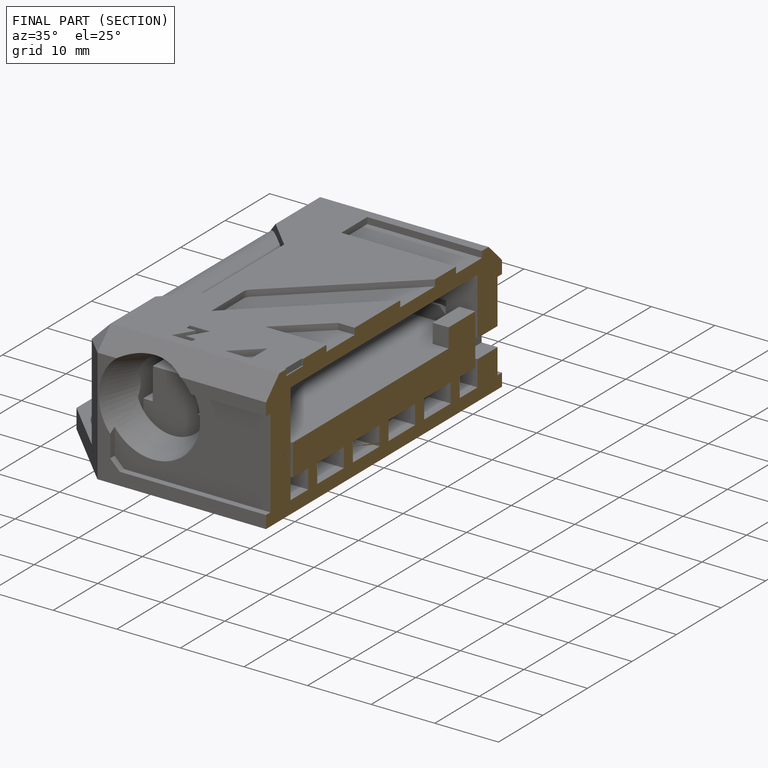
[diagram: finished part — half-section view (interior)]
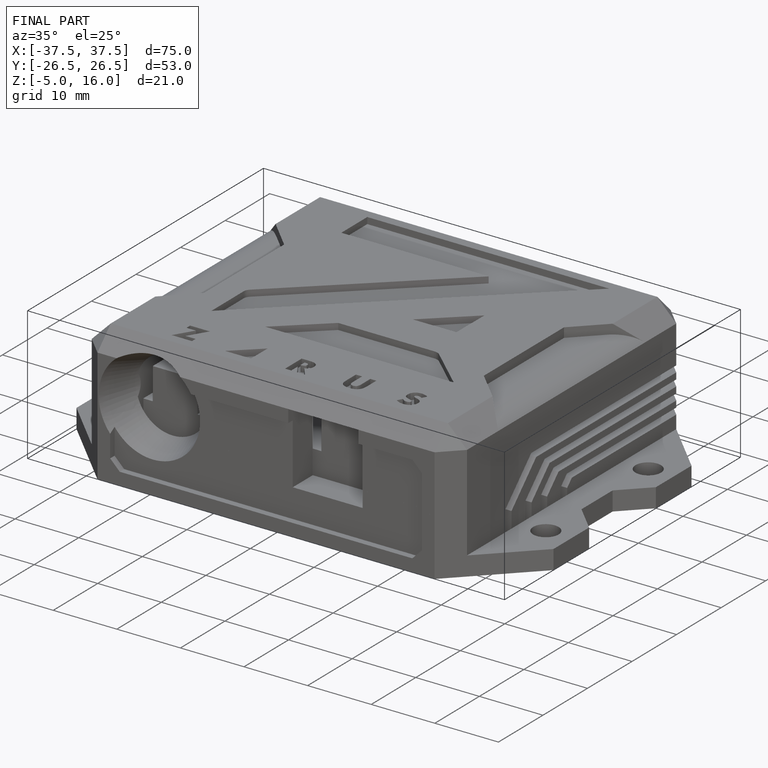
[diagram: finished part — iso view with bounding-box wireframe]
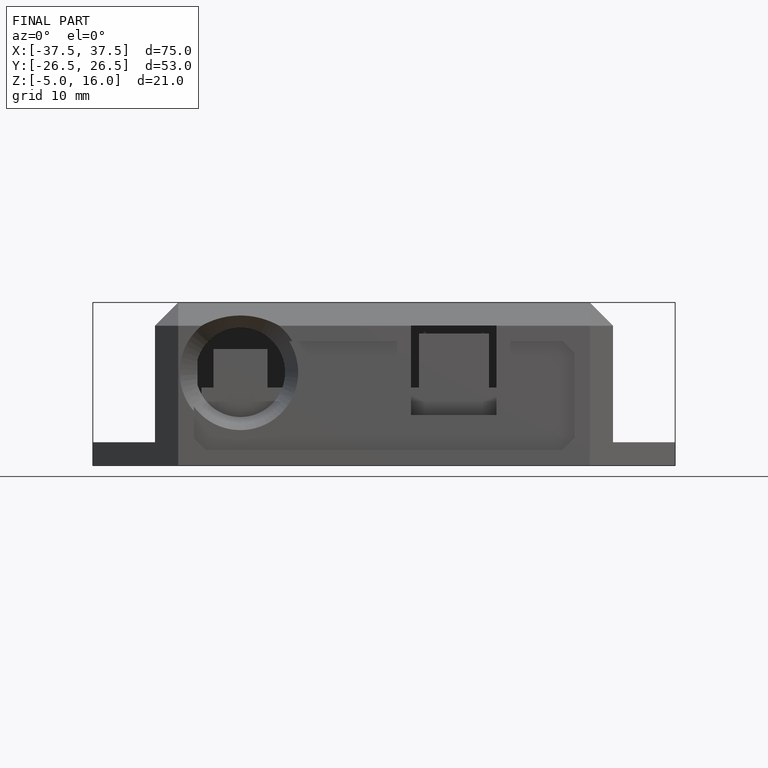
[diagram: finished part — front view with bounding-box wireframe]
